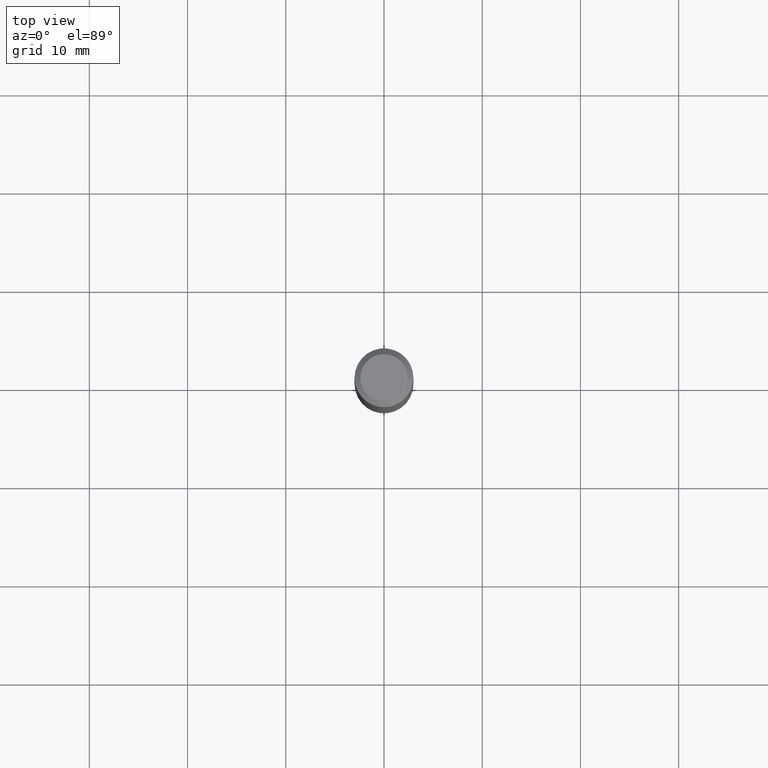
[diagram: clean part render]
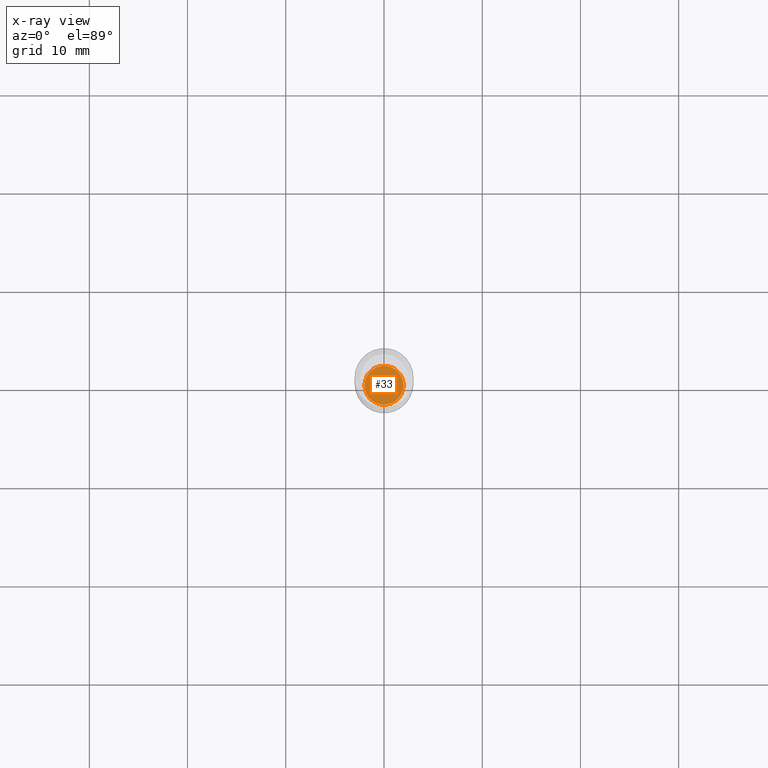
[diagram: x-ray — body ghosted, one internal face saturated and labeled with its STEP entity id]
A machine part, top view, then the same camera in x-ray: the body is ghosted and one INTERNAL B-rep face — a face not visible from any outside direction — is saturated and labeled: STEP entity #33.
In plain terms, the highlighted planar face has unit normal (-0, 0, 1).
Its self-contained STEP definition (entity closure, byte-faithful):
#12 = CARTESIAN_POINT ( 'NONE',  ( 4.331658896395732410E-29, -6.184460895492863090E-15, -1.771299999999999653 ) ) ;
#31 = VERTEX_POINT ( 'NONE', #387 ) ;
#33 = ADVANCED_FACE ( 'NONE', ( #46 ), #155, .F. ) ;
#46 = FACE_OUTER_BOUND ( 'NONE', #267, .T. ) ;
#77 = DIRECTION ( 'NONE',  ( 1.000000000000000000, -6.982962677686267499E-15, 0.000000000000000000 ) ) ;
#84 = VERTEX_POINT ( 'NONE', #472 ) ;
#103 = EDGE_CURVE ( 'NONE', #31, #84, #302, .T. ) ;
#108 = AXIS2_PLACEMENT_3D ( 'NONE', #416, #270, #163 ) ;
#126 = CARTESIAN_POINT ( 'NONE',  ( 4.331658896395732410E-29, -6.184460895492863090E-15, -1.771299999999999653 ) ) ;
#129 = DIRECTION ( 'NONE',  ( -2.445468806185136597E-29, 3.491481338843145583E-15, 1.000000000000000000 ) ) ;
#134 = AXIS2_PLACEMENT_3D ( 'NONE', #12, #164, #77 ) ;
#155 = PLANE ( 'NONE',  #108 ) ;
#163 = DIRECTION ( 'NONE',  ( 1.000000000000000000, -6.982962677686265922E-15, 4.876176775795935793E-29 ) ) ;
#164 = DIRECTION ( 'NONE',  ( -2.445468806185136597E-29, 3.491481338843145583E-15, 1.000000000000000000 ) ) ;
#267 = EDGE_LOOP ( 'NONE', ( #273, #295 ) ) ;
#270 = DIRECTION ( 'NONE',  ( -2.438088387897960049E-29, 3.491481338843145188E-15, 1.000000000000000000 ) ) ;
#273 = ORIENTED_EDGE ( 'NONE', *, *, #434, .F. ) ;
#295 = ORIENTED_EDGE ( 'NONE', *, *, #103, .F. ) ;
#302 = CIRCLE ( 'NONE', #459, 0.07825000000000000011 ) ;
#356 = CIRCLE ( 'NONE', #134, 0.07825000000000000011 ) ;
#387 = CARTESIAN_POINT ( 'NONE',  ( -0.07825000000000000011, -5.625811977586474774E-15, -1.771299999999999653 ) ) ;
#416 = CARTESIAN_POINT ( 'NONE',  ( 4.331658896395732410E-29, -6.184460895492863090E-15, -1.771299999999999653 ) ) ;
#431 = DIRECTION ( 'NONE',  ( 1.000000000000000000, -6.982962677686267499E-15, 0.000000000000000000 ) ) ;
#434 = EDGE_CURVE ( 'NONE', #84, #31, #356, .T. ) ;
#459 = AXIS2_PLACEMENT_3D ( 'NONE', #126, #129, #431 ) ;
#472 = CARTESIAN_POINT ( 'NONE',  ( 0.07825000000000000011, -6.730877725021813428E-15, -1.771299999999999653 ) ) ;